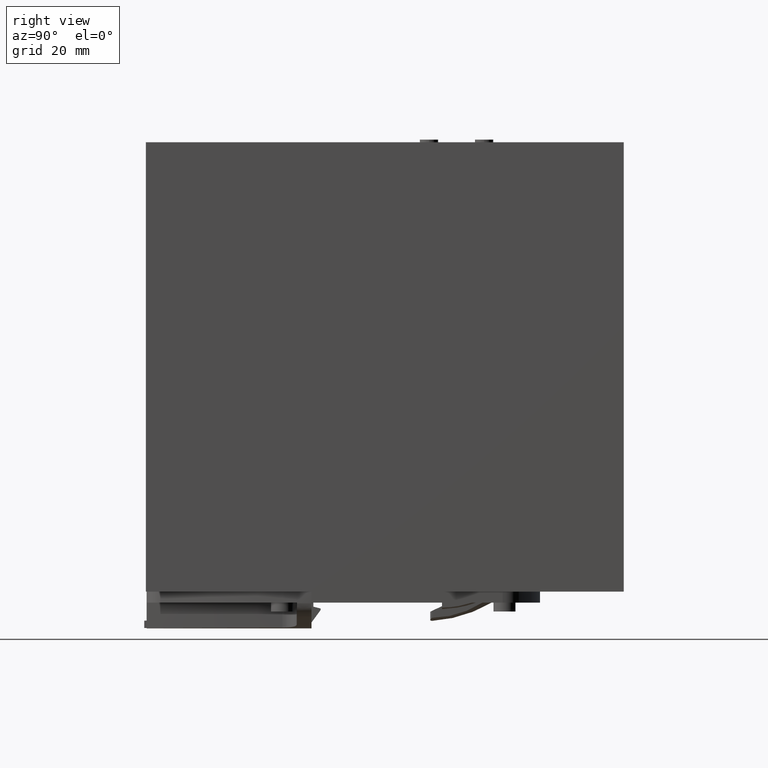
[diagram: clean part render]
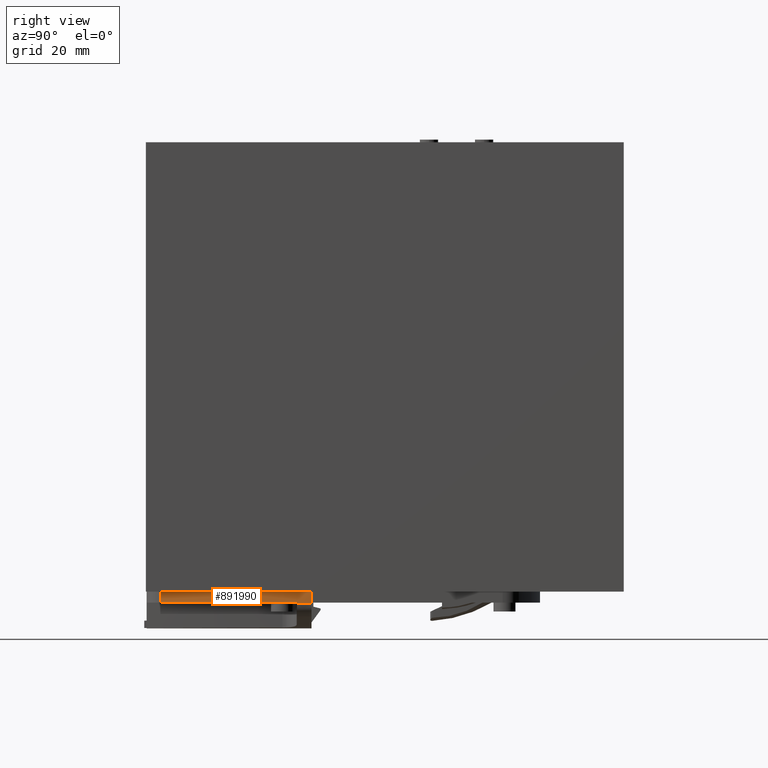
[diagram: same view with one face highlighted and labeled with its STEP entity id]
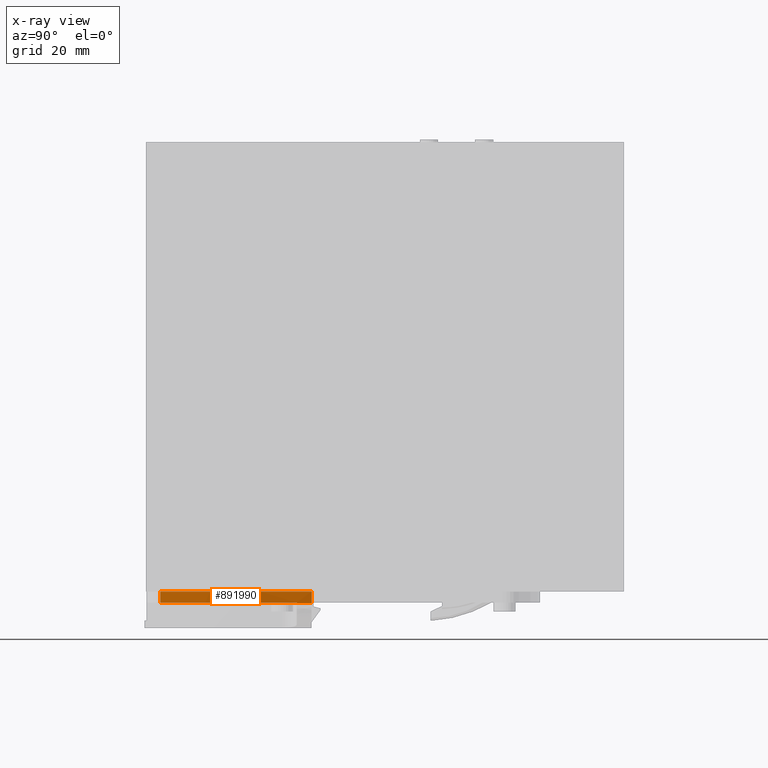
[diagram: x-ray of the same camera — body ghosted, the highlighted face saturated]
A machine part, right view. The second image highlights one B-rep face of the part: STEP entity #891990.
The next image is the same camera in x-ray: the body ghosted, the highlighted face saturated — about 0% of this face is hidden behind the body in this view.
In plain terms, the highlighted cylindrical surface (partial cylindrical patch) has radius 160 mm, axis along (0, 0, -1).
Its self-contained STEP definition (entity closure, byte-faithful):
#8730=CARTESIAN_POINT('',(61.,0.0999999999916543,84.0968498908014));
#8740=VERTEX_POINT('',#8730);
#8770=CARTESIAN_POINT('',(-99.,0.0999999999916668,84.0968498908014));
#8780=DIRECTION('',(0.,-1.,0.));
#8790=DIRECTION('',(0.,0.,1.));
#8800=AXIS2_PLACEMENT_3D('',#8770,#8780,#8790);
#8810=CIRCLE('',#8800,160.);
#8820=CARTESIAN_POINT('',(55.6217060011348,0.0999999999916543,
125.232333761769));
#8830=VERTEX_POINT('',#8820);
#8840=EDGE_CURVE('',#8740,#8830,#8810,.T.);
#104130=CARTESIAN_POINT('',(60.9999939336886,-3.06813087505524,
84.0968498908014));
#104140=VERTEX_POINT('',#104130);
#104500=CARTESIAN_POINT('',(60.949986656774,-3.09289642147812,
88.0968497525395));
#104510=VERTEX_POINT('',#104500);
#104540=CARTESIAN_POINT('',(60.8000293535033,-3.16642151336232,
92.0935934495442));
#104550=CARTESIAN_POINT('',(60.8996404929171,-3.118029523782,
90.1029200900537));
#104560=CARTESIAN_POINT('',(60.9621040630779,-3.08687943175109,
88.1095548975953));
#104570=CARTESIAN_POINT('',(61.012576992781,-3.06184836572829,
84.109518121095));
#104580=CARTESIAN_POINT('',(61.0001326039501,-3.06820261124776,
82.1026474383351));
#104590=CARTESIAN_POINT('',(60.9499915698521,-3.09291842649623,
80.097182084281));
#104600=B_SPLINE_CURVE_WITH_KNOTS('',3,(#104540,#104550,#104560,#104570,
#104580,#104590),.UNSPECIFIED.,.F.,.F.,(4,2,4),(63.6569317727913,
69.5640103292074,75.5069425732294),.UNSPECIFIED.);
#104610=EDGE_CURVE('',#104510,#104140,#104600,.T.);
#857730=CARTESIAN_POINT('',(61.,-2.90000000000834,84.0968498908014));
#857740=VERTEX_POINT('',#857730);
#891420=CARTESIAN_POINT('',(61.,1.10000239999169,84.0968498908014));
#891430=DIRECTION('',(0.,-1.,0.));
#891440=VECTOR('',#891430,1.);
#891450=LINE('',#891420,#891440);
#891460=EDGE_CURVE('',#8740,#857740,#891450,.T.);
#891600=CARTESIAN_POINT('',(-99.,1.10000239999169,84.0968498908014));
#891610=DIRECTION('',(0.,-1.,0.));
#891620=DIRECTION('',(0.,0.,1.));
#891630=AXIS2_PLACEMENT_3D('',#891600,#891610,#891620);
#891640=CYLINDRICAL_SURFACE('',#891630,160.);
#891650=CARTESIAN_POINT('',(60.9499921850577,1.10000239999169,
88.0968498908015));
#891660=DIRECTION('',(0.,-1.,0.));
#891670=VECTOR('',#891660,1.);
#891680=LINE('',#891650,#891670);
#891690=CARTESIAN_POINT('',(60.9499921850577,-2.90000000000834,
88.0968498908015));
#891700=VERTEX_POINT('',#891690);
#891710=EDGE_CURVE('',#891700,#104510,#891680,.T.);
#891720=ORIENTED_EDGE('',*,*,#891710,.T.);
#891730=CARTESIAN_POINT('',(-99.,-2.90000000000834,84.0968498908014));
#891740=DIRECTION('',(0.,-1.,0.));
#891750=DIRECTION('',(0.,0.,1.));
#891760=AXIS2_PLACEMENT_3D('',#891730,#891740,#891750);
#891770=CIRCLE('',#891760,160.);
#891780=CARTESIAN_POINT('',(55.6217060011348,-2.90000000000834,
125.232333761769));
#891790=VERTEX_POINT('',#891780);
#891800=EDGE_CURVE('',#891700,#891790,#891770,.T.);
#891810=ORIENTED_EDGE('',*,*,#891800,.F.);
#891820=CARTESIAN_POINT('',(55.6217060011348,1.10000239999169,
125.232333761769));
#891830=DIRECTION('',(0.,-1.,0.));
#891840=VECTOR('',#891830,1.);
#891850=LINE('',#891820,#891840);
#891860=EDGE_CURVE('',#8830,#891790,#891850,.T.);
#891870=ORIENTED_EDGE('',*,*,#891860,.T.);
#891880=ORIENTED_EDGE('',*,*,#8840,.T.);
#891890=ORIENTED_EDGE('',*,*,#891460,.F.);
#891900=CARTESIAN_POINT('',(61.,1.10000239999169,84.0968498908014));
#891910=DIRECTION('',(0.,-1.,0.));
#891920=VECTOR('',#891910,1.);
#891930=LINE('',#891900,#891920);
#891940=EDGE_CURVE('',#857740,#104140,#891930,.T.);
#891950=ORIENTED_EDGE('',*,*,#891940,.F.);
#891960=ORIENTED_EDGE('',*,*,#104610,.T.);
#891970=EDGE_LOOP('',(#891960,#891950,#891890,#891880,#891870,#891810,
#891720));
#891980=FACE_OUTER_BOUND('',#891970,.T.);
#891990=ADVANCED_FACE('',(#891980),#891640,.T.);